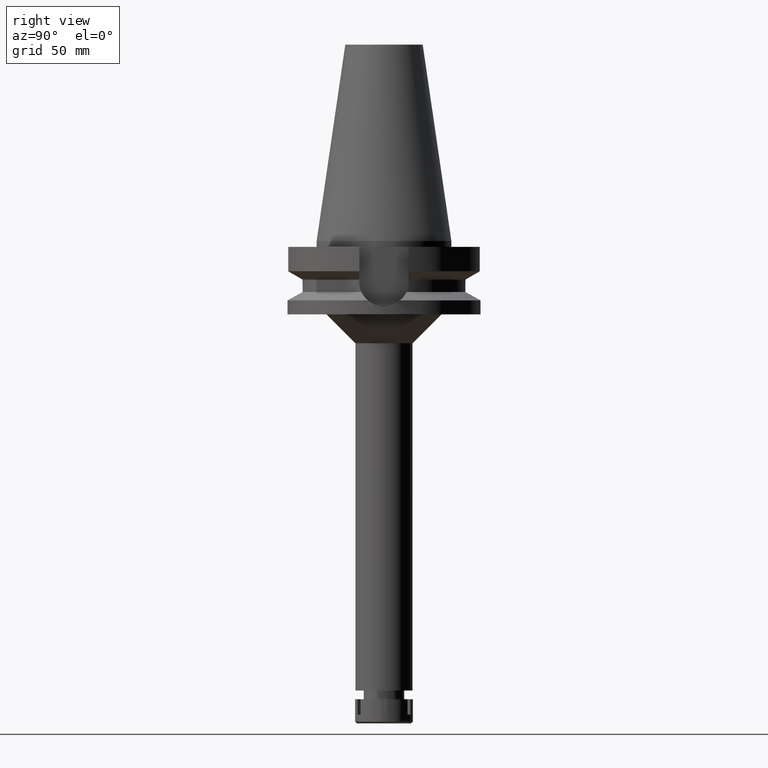
[diagram: clean part render]
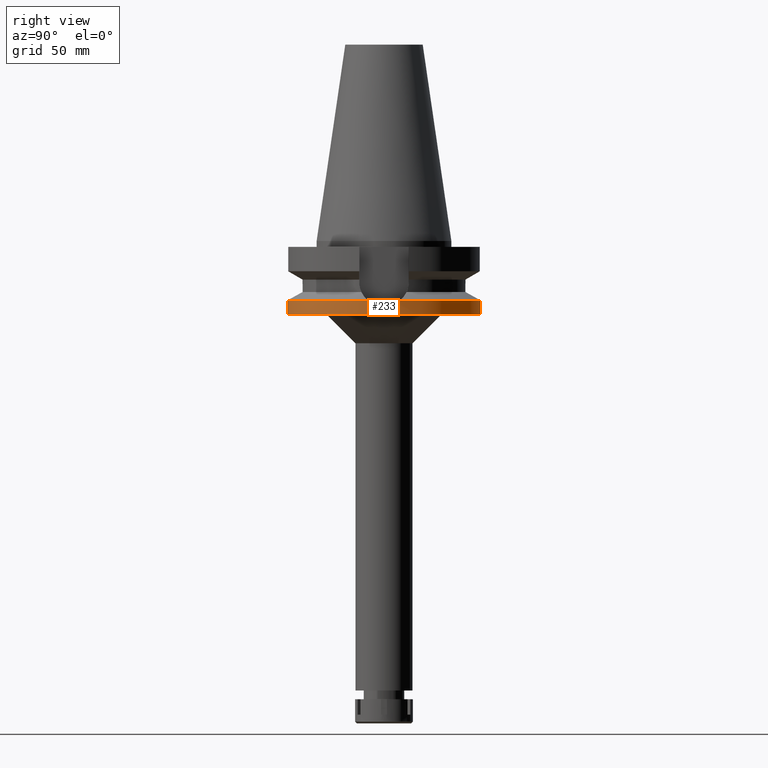
[diagram: same view with one face highlighted and labeled with its STEP entity id]
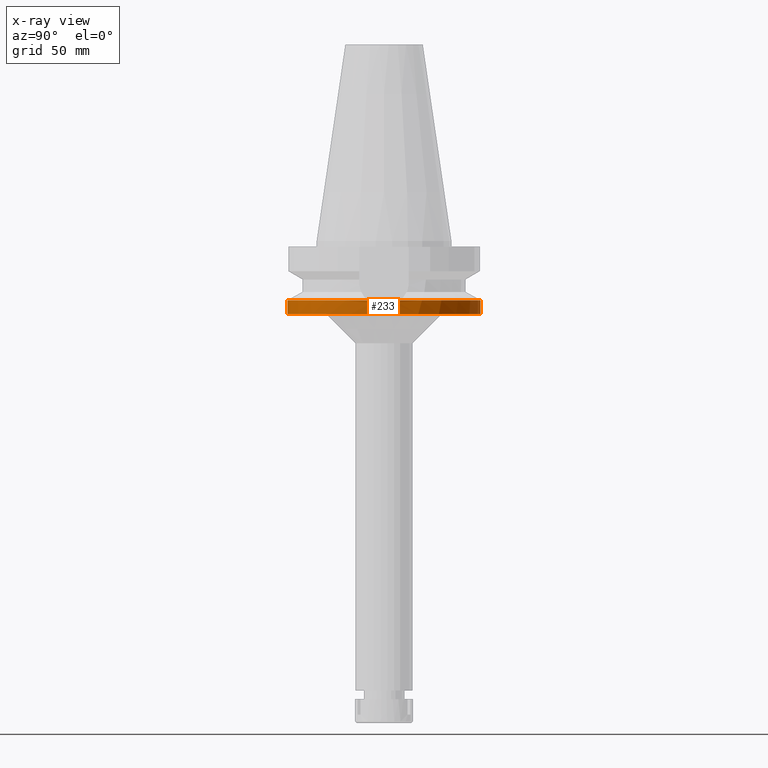
[diagram: x-ray of the same camera — body ghosted, the highlighted face saturated]
A machine part, right view. The second image highlights one B-rep face of the part: STEP entity #233.
The next image is the same camera in x-ray: the body ghosted, the highlighted face saturated — about 0% of this face is hidden behind the body in this view.
In plain terms, the highlighted cylindrical surface (partial cylindrical patch) has radius 50 mm, axis along (0, 0, -1).
Its self-contained STEP definition (entity closure, byte-faithful):
#12 = CARTESIAN_POINT ( 'NONE',  ( 0.0000000000000000000, 0.0000000000000000000, -30.73730776426999967 ) ) ;
#26 = CARTESIAN_POINT ( 'NONE',  ( 0.0000000000000000000, 0.0000000000000000000, -30.73730776426999967 ) ) ;
#94 = CARTESIAN_POINT ( 'NONE',  ( 49.98174725140538044, 1.532214871573133852, -33.93192243005226061 ) ) ;
#112 = CARTESIAN_POINT ( 'NONE',  ( 49.75257428022928963, -4.968379226077386690, -33.00101214794651128 ) ) ;
#130 = CARTESIAN_POINT ( 'NONE',  ( 49.78933990105934981, -4.584940122132825202, -33.15420559210994611 ) ) ;
#147 = VECTOR ( 'NONE', #1729, 1000.000000000000000 ) ;
#152 = CARTESIAN_POINT ( 'NONE',  ( 49.99181805523429034, -0.9093549978637649467, -33.96919875735668626 ) ) ;
#224 = CYLINDRICAL_SURFACE ( 'NONE', #1240, 50.00000000000000000 ) ;
#230 = DIRECTION ( 'NONE',  ( 0.0000000000000000000, 0.0000000000000000000, -1.000000000000000000 ) ) ;
#233 = ADVANCED_FACE ( 'NONE', ( #1047 ), #224, .T. ) ;
#265 = VECTOR ( 'NONE', #3573, 1000.000000000000000 ) ;
#343 = CARTESIAN_POINT ( 'NONE',  ( 49.79141052114111687, 4.562360029664126237, -33.16280697026652291 ) ) ;
#364 = CARTESIAN_POINT ( 'NONE',  ( 49.50785696689513316, -6.997564411275493335, -31.92797514953220883 ) ) ;
#384 = CARTESIAN_POINT ( 'NONE',  ( 49.72344690654301047, 5.262320351646029515, -32.87941492298762824 ) ) ;
#408 = CARTESIAN_POINT ( 'NONE',  ( 1.598721155459999804E-14, -50.00000000000000000, -30.73730776426999967 ) ) ;
#416 = CARTESIAN_POINT ( 'NONE',  ( 49.55622366825235048, -6.646646299405385427, -32.14748238817816173 ) ) ;
#447 = CARTESIAN_POINT ( 'NONE',  ( 0.0000000000000000000, -50.00000000000000000, -38.00000000000000000 ) ) ;
#479 = CARTESIAN_POINT ( 'NONE',  ( 49.55720152517041299, 6.639415883446737610, -32.15184976941726092 ) ) ;
#512 = CARTESIAN_POINT ( 'NONE',  ( 49.26250064874000145, 8.556052234128998180, -30.73730776426999967 ) ) ;
#539 = DIRECTION ( 'NONE',  ( 0.0000000000000000000, 0.0000000000000000000, -1.000000000000000000 ) ) ;
#602 = CIRCLE ( 'NONE', #1120, 50.00000000000000000 ) ;
#603 = CARTESIAN_POINT ( 'NONE',  ( 49.80426503748365974, 4.420172306714740706, -33.21602876915563485 ) ) ;
#623 = CARTESIAN_POINT ( 'NONE',  ( 49.99656062084331865, -0.6257140597856145625, -33.98717225110618756 ) ) ;
#642 = CARTESIAN_POINT ( 'NONE',  ( 49.84651528416291910, 3.920985205720828315, -33.39005319605569611 ) ) ;
#653 = LINE ( 'NONE', #1785, #147 ) ;
#661 = CARTESIAN_POINT ( 'NONE',  ( 49.45237339626153528, -7.380120931902103720, -31.67121146352973327 ) ) ;
#677 = CARTESIAN_POINT ( 'NONE',  ( 49.79212822419394513, -4.554578003299648792, -33.16575966829204702 ) ) ;
#728 = CARTESIAN_POINT ( 'NONE',  ( 49.26250064874000145, 8.556052234128998180, -30.73730776426999967 ) ) ;
#835 = CIRCLE ( 'NONE', #1705, 50.00000000000000000 ) ;
#876 = CARTESIAN_POINT ( 'NONE',  ( 49.92905808751724805, 2.678002762186788122, -33.72384118163005695 ) ) ;
#897 = CARTESIAN_POINT ( 'NONE',  ( 49.86258131273284988, -3.782611438609788213, -33.45750188038963557 ) ) ;
#911 = CARTESIAN_POINT ( 'NONE',  ( 49.78641396948339803, -4.616657847928960834, -33.14207524796725579 ) ) ;
#930 = CARTESIAN_POINT ( 'NONE',  ( 49.61155773816467018, 6.220675324417796581, -32.39436178189296811 ) ) ;
#1003 = AXIS2_PLACEMENT_3D ( 'NONE', #26, #539, #1881 ) ;
#1017 = ORIENTED_EDGE ( 'NONE', *, *, #1093, .T. ) ;
#1047 = FACE_OUTER_BOUND ( 'NONE', #3506, .T. ) ;
#1093 = EDGE_CURVE ( 'NONE', #2209, #1343, #653, .T. ) ;
#1098 = DIRECTION ( 'NONE',  ( 0.0000000000000000000, 1.000000000000000000, 0.0000000000000000000 ) ) ;
#1102 = DIRECTION ( 'NONE',  ( 0.0000000000000000000, -1.000000000000000000, 0.0000000000000000000 ) ) ;
#1120 = AXIS2_PLACEMENT_3D ( 'NONE', #12, #230, #1098 ) ;
#1160 = CARTESIAN_POINT ( 'NONE',  ( 49.54916030681085459, -6.699096042978953669, -32.11564414439222048 ) ) ;
#1183 = CARTESIAN_POINT ( 'NONE',  ( 49.64873468408897139, -5.926093020387606991, -32.55855127938665561 ) ) ;
#1200 = CARTESIAN_POINT ( 'NONE',  ( 49.99923022602947498, -0.2971183249970290596, -33.99716155231156023 ) ) ;
#1218 = CARTESIAN_POINT ( 'NONE',  ( 49.79128222916801860, -4.563809742583650575, -33.16225492797606478 ) ) ;
#1240 = AXIS2_PLACEMENT_3D ( 'NONE', #3544, #2447, #1305 ) ;
#1305 = DIRECTION ( 'NONE',  ( 0.0000000000000000000, -1.000000000000000000, 0.0000000000000000000 ) ) ;
#1343 = VERTEX_POINT ( 'NONE', #447 ) ;
#1425 = CARTESIAN_POINT ( 'NONE',  ( 0.0000000000000000000, 50.00000000000000000, -38.00000000000000000 ) ) ;
#1434 = CARTESIAN_POINT ( 'NONE',  ( 49.79019610906117776, 4.575589141192986098, -33.15777286112044209 ) ) ;
#1453 = CARTESIAN_POINT ( 'NONE',  ( 49.55505394853805257, -6.655356545430453075, -32.14221338770698111 ) ) ;
#1476 = CARTESIAN_POINT ( 'NONE',  ( 49.64406890207645517, 5.957399479174311452, -32.53735197230671616 ) ) ;
#1493 = CARTESIAN_POINT ( 'NONE',  ( 49.77949971991573364, -4.690819386817550729, -33.11337491297366142 ) ) ;
#1512 = CARTESIAN_POINT ( 'NONE',  ( 49.91449747583427410, -3.011291992719982158, -33.66643545831084339 ) ) ;
#1532 = CARTESIAN_POINT ( 'NONE',  ( 49.56457604548219820, 6.584208491147699682, -32.18502865144746750 ) ) ;
#1536 = EDGE_CURVE ( 'NONE', #2046, #2209, #2341, .T. ) ;
#1585 = CARTESIAN_POINT ( 'NONE',  ( 49.48044090959189845, 7.210275244154664698, -31.80580850992525299 ) ) ;
#1621 = LINE ( 'NONE', #3064, #265 ) ;
#1705 = AXIS2_PLACEMENT_3D ( 'NONE', #2444, #2812, #1102 ) ;
#1718 = CARTESIAN_POINT ( 'NONE',  ( 49.55329500995155456, -6.668440173801627679, -32.13428823796999723 ) ) ;
#1729 = DIRECTION ( 'NONE',  ( 0.0000000000000000000, -2.250196262218999978E-14, -1.000000000000000000 ) ) ;
#1734 = CARTESIAN_POINT ( 'NONE',  ( 50.00000154515230832, -0.01683302875909804819, -34.00001012739154760 ) ) ;
#1750 = CARTESIAN_POINT ( 'NONE',  ( 49.79357480858200802, 4.538675684557696322, -33.17177538367628387 ) ) ;
#1785 = CARTESIAN_POINT ( 'NONE',  ( 0.0000000000000000000, -50.00000000000000000, -30.73730776426999967 ) ) ;
#1788 = CARTESIAN_POINT ( 'NONE',  ( 49.60518484965915320, -6.281269808646927189, -32.36791778015138021 ) ) ;
#1805 = CARTESIAN_POINT ( 'NONE',  ( 49.55481251794635966, 6.657217598709440409, -32.14108634208563586 ) ) ;
#1826 = CARTESIAN_POINT ( 'NONE',  ( 49.55572029099057119, 6.650459805610375419, -32.14517739721160439 ) ) ;
#1851 = CARTESIAN_POINT ( 'NONE',  ( 49.55942031348015320, 6.622851153878539954, -32.16184060114910181 ) ) ;
#1881 = DIRECTION ( 'NONE',  ( 0.9852500129747439050, -0.1711210446826074982, 0.0000000000000000000 ) ) ;
#1980 = VERTEX_POINT ( 'NONE', #1425 ) ;
#1981 = CARTESIAN_POINT ( 'NONE',  ( 49.86781402486118253, 3.634532326752366149, -33.47688292873827720 ) ) ;
#2003 = CARTESIAN_POINT ( 'NONE',  ( 49.54076884810750414, -6.760914060698842043, -32.07774335858016457 ) ) ;
#2046 = VERTEX_POINT ( 'NONE', #3116 ) ;
#2061 = CARTESIAN_POINT ( 'NONE',  ( 49.70769045631703875, -5.400735402310107069, -32.81157524991390062 ) ) ;
#2129 = CARTESIAN_POINT ( 'NONE',  ( 49.38319579455502861, 7.861135403730500570, -31.35747609989353890 ) ) ;
#2209 = VERTEX_POINT ( 'NONE', #408 ) ;
#2246 = ORIENTED_EDGE ( 'NONE', *, *, #2486, .F. ) ;
#2317 = CARTESIAN_POINT ( 'NONE',  ( 49.75843120208460135, 4.920344588270645581, -33.02605928558791248 ) ) ;
#2338 = CARTESIAN_POINT ( 'NONE',  ( 49.52349772101281644, -6.886548028894457829, -31.99945688069821159 ) ) ;
#2341 = CIRCLE ( 'NONE', #1003, 50.00000000000000000 ) ;
#2360 = CARTESIAN_POINT ( 'NONE',  ( 49.99984918161645453, -0.1334601368714899428, -33.99945535958694620 ) ) ;
#2444 = CARTESIAN_POINT ( 'NONE',  ( 0.0000000000000000000, 2.682466348851999684E-14, -38.00000000000000000 ) ) ;
#2447 = DIRECTION ( 'NONE',  ( 0.0000000000000000000, 0.0000000000000000000, -1.000000000000000000 ) ) ;
#2486 = EDGE_CURVE ( 'NONE', #2046, #2756, #3157, .T. ) ;
#2555 = CARTESIAN_POINT ( 'NONE',  ( 49.72628088382361256, -5.226839792643021454, -32.89043312836528798 ) ) ;
#2564 = ORIENTED_EDGE ( 'NONE', *, *, #3317, .T. ) ;
#2576 = CARTESIAN_POINT ( 'NONE',  ( 49.99953693458151349, 0.7730648211774698852, -33.99815403265393599 ) ) ;
#2596 = CARTESIAN_POINT ( 'NONE',  ( 49.47545955080156688, -7.223761303602078243, -31.77884738267104581 ) ) ;
#2612 = CARTESIAN_POINT ( 'NONE',  ( 49.76532291721859735, -4.839743683307206723, -33.05437493800184967 ) ) ;
#2632 = CARTESIAN_POINT ( 'NONE',  ( 49.96619217283481618, -1.861043626914185456, -33.87048154082982165 ) ) ;
#2693 = EDGE_CURVE ( 'NONE', #1343, #1980, #835, .T. ) ;
#2713 = EDGE_CURVE ( 'NONE', #3199, #1980, #1621, .T. ) ;
#2756 = VERTEX_POINT ( 'NONE', #512 ) ;
#2812 = DIRECTION ( 'NONE',  ( 0.0000000000000000000, 0.0000000000000000000, 1.000000000000000000 ) ) ;
#2834 = CARTESIAN_POINT ( 'NONE',  ( 49.79680854216567099, 4.503141133094468174, -33.18517100302311462 ) ) ;
#2852 = CARTESIAN_POINT ( 'NONE',  ( 50.00000435595917025, 0.008138655372537814681, -34.00001832910931654 ) ) ;
#2870 = CARTESIAN_POINT ( 'NONE',  ( 49.99996105250959033, -0.06346433224498049253, -33.99986443132595326 ) ) ;
#2894 = CARTESIAN_POINT ( 'NONE',  ( 49.32355172926290976, -8.204543289159845543, -31.05100676798202741 ) ) ;
#2910 = CARTESIAN_POINT ( 'NONE',  ( 49.37865130120866297, -7.863348514577860549, -31.32096616145794954 ) ) ;
#3064 = CARTESIAN_POINT ( 'NONE',  ( 0.0000000000000000000, 50.00000000000000000, -30.73730776426999967 ) ) ;
#3106 = CARTESIAN_POINT ( 'NONE',  ( 49.81882249594409728, 4.254026027403304155, -33.27615225246631070 ) ) ;
#3116 = CARTESIAN_POINT ( 'NONE',  ( 49.26250064874000145, -8.556052234130000045, -30.73730776426999967 ) ) ;
#3125 = CARTESIAN_POINT ( 'NONE',  ( 49.97906048055975958, -1.478705909132290941, -33.92031957334333470 ) ) ;
#3143 = CARTESIAN_POINT ( 'NONE',  ( 49.90716092636721868, 3.061060488199606411, -33.63638781152067025 ) ) ;
#3157 = B_SPLINE_CURVE_WITH_KNOTS ( 'NONE', 3,
 ( #3401, #2894, #2910, #661, #2596, #364, #2338, #2003, #1160, #1718, #1453, #416, #3163, #1788, #1183, #2061, #2555, #112, #2612, #1493, #911, #130, #1218, #677, #897, #1512, #2632, #3125, #152, #623, #1200, #2360, #2870, #1734, #2852, #2576, #94, #876, #3143, #1981, #642, #3106, #603, #2834, #1750, #343, #1434, #2317, #384, #3436, #1476, #930, #3509, #3474, #1532, #1851, #479, #1826, #1805, #1585, #2129, #728 ),
 .UNSPECIFIED., .F., .F.,
 ( 4, 2, 2, 1, 1, 1, 1, 2, 2, 2, 2, 1, 1, 1, 2, 2, 2, 2, 1, 1, 1, 2, 2, 2, 2, 1, 1, 1, 1, 2, 2, 2, 2, 1, 1, 1, 1, 2, 2, 4 ),
 ( 0.0000000000000000000, 0.06249999999996699862, 0.09374999999995038691, 0.1093749999999423933, 0.1171874999999384104, 0.1210937499999364259, 0.1230468749999354960, 0.1240234374999354405, 0.1249999999999353850, 0.1874999999999453493, 0.2187499999999500677, 0.2343749999999523714, 0.2421874999999535372, 0.2460937499999542311, 0.2480468749999544531, 0.2499999999999547029, 0.3749999999999685807, 0.4374999999999754641, 0.4687499999999788503, 0.4843749999999805711, 0.4921874999999814038, 0.4960937499999818479, 0.4999999999999822364, 0.6249999999999955591, 0.6875000000000022204, 0.7187500000000056621, 0.7343750000000073275, 0.7421875000000083267, 0.7460937500000091038, 0.7480468750000092149, 0.7500000000000094369, 0.8125000000000272005, 0.8437500000000360822, 0.8593750000000409672, 0.8671875000000430767, 0.8710937500000437428, 0.8730468750000441869, 0.8740234375000440759, 0.8750000000000439648, 1.000000000000000000 ),
 .UNSPECIFIED. ) ;
#3163 = CARTESIAN_POINT ( 'NONE',  ( 49.55664221925299273, -6.643527527972374891, -32.14936745230062343 ) ) ;
#3199 = VERTEX_POINT ( 'NONE', #3266 ) ;
#3201 = ORIENTED_EDGE ( 'NONE', *, *, #1536, .T. ) ;
#3266 = CARTESIAN_POINT ( 'NONE',  ( 0.0000000000000000000, 50.00000000000000000, -30.73730776426999967 ) ) ;
#3317 = EDGE_CURVE ( 'NONE', #3199, #2756, #602, .T. ) ;
#3401 = CARTESIAN_POINT ( 'NONE',  ( 49.26250064874000145, -8.556052234130000045, -30.73730776426999967 ) ) ;
#3408 = ORIENTED_EDGE ( 'NONE', *, *, #2693, .T. ) ;
#3436 = CARTESIAN_POINT ( 'NONE',  ( 49.66469752097502521, 5.782708943814155234, -32.62693119918691309 ) ) ;
#3474 = CARTESIAN_POINT ( 'NONE',  ( 49.57480174660395988, 6.506959023376115425, -32.23091076063704463 ) ) ;
#3506 = EDGE_LOOP ( 'NONE', ( #3201, #1017, #3408, #3510, #2564, #2246 ) ) ;
#3509 = CARTESIAN_POINT ( 'NONE',  ( 49.59491009731780764, 6.352622271362762696, -32.32071165156352066 ) ) ;
#3510 = ORIENTED_EDGE ( 'NONE', *, *, #2713, .F. ) ;
#3544 = CARTESIAN_POINT ( 'NONE',  ( 0.0000000000000000000, 2.682466348851999684E-14, 119.0400000000000063 ) ) ;
#3573 = DIRECTION ( 'NONE',  ( 0.0000000000000000000, 2.152361642122000014E-14, -1.000000000000000000 ) ) ;